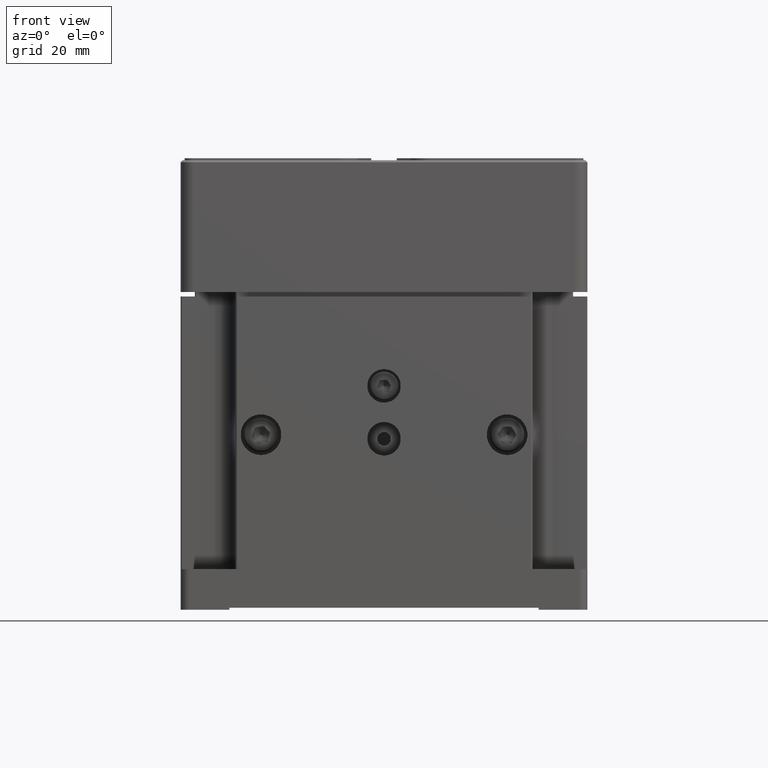
[diagram: clean part render]
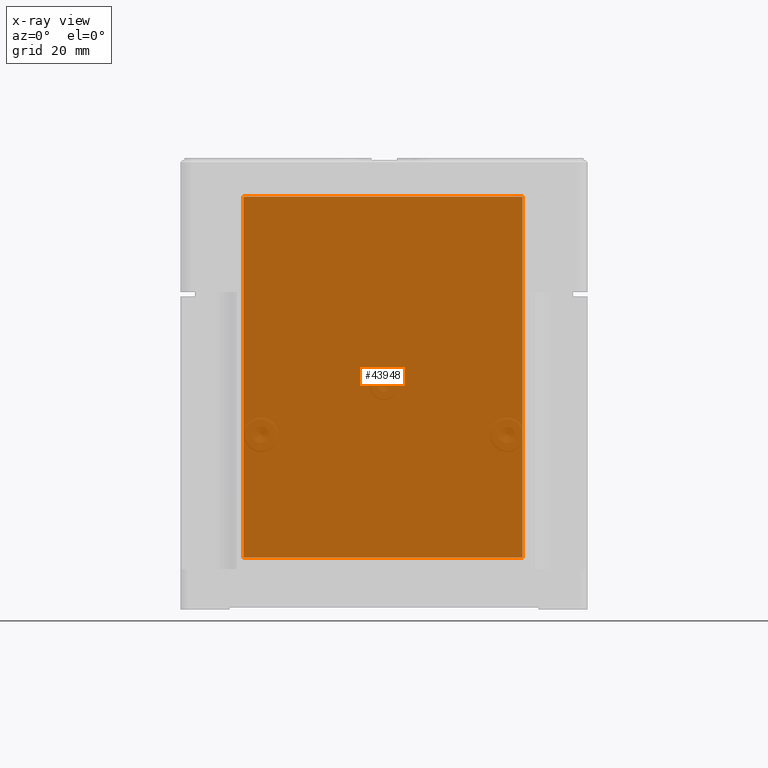
[diagram: x-ray — body ghosted, one internal face saturated and labeled with its STEP entity id]
A machine part, front view, then the same camera in x-ray: the body is ghosted and one INTERNAL B-rep face — a face not visible from any outside direction — is saturated and labeled: STEP entity #43948.
In plain terms, the highlighted planar face has unit normal (-0, 1, 0).
Its self-contained STEP definition (entity closure, byte-faithful):
#191 = CARTESIAN_POINT ( 'NONE',  ( -34.53213445791901393, 8.999999999999923617, 201.5786750473931477 ) ) ;
#675 = DIRECTION ( 'NONE',  ( -8.345748681675372357E-16, 1.000000000000000000, 0.000000000000000000 ) ) ;
#1983 = DIRECTION ( 'NONE',  ( 1.000000000000000000, 8.345748681675372357E-16, -0.000000000000000000 ) ) ;
#4435 = LINE ( 'NONE', #191, #41479 ) ;
#5529 = LINE ( 'NONE', #15895, #11892 ) ;
#7537 = FACE_OUTER_BOUND ( 'NONE', #15488, .T. ) ;
#10199 = DIRECTION ( 'NONE',  ( -1.000000000000000000, -8.345748681675372357E-16, 0.000000000000000000 ) ) ;
#10723 = ORIENTED_EDGE ( 'NONE', *, *, #19430, .F. ) ;
#11892 = VECTOR ( 'NONE', #1983, 1000.000000000000000 ) ;
#13188 = ORIENTED_EDGE ( 'NONE', *, *, #37965, .F. ) ;
#13609 = LINE ( 'NONE', #27960, #20119 ) ;
#14345 = ORIENTED_EDGE ( 'NONE', *, *, #45479, .F. ) ;
#14781 = DIRECTION ( 'NONE',  ( 0.000000000000000000, 0.000000000000000000, 1.000000000000000000 ) ) ;
#15488 = EDGE_LOOP ( 'NONE', ( #18609, #10723, #14345, #13188 ) ) ;
#15585 = CARTESIAN_POINT ( 'NONE',  ( 34.07147222789321006, 8.999999999999973355, 2.832529588695869904 ) ) ;
#15895 = CARTESIAN_POINT ( 'NONE',  ( 35.45000000000002416, 8.999999999999982236, 91.53712329073599108 ) ) ;
#16878 = DIRECTION ( 'NONE',  ( -1.000000000000000000, -8.345748681675372357E-16, 0.000000000000000000 ) ) ;
#17508 = CARTESIAN_POINT ( 'NONE',  ( 34.07147222789318164, 8.999999999999980460, 91.53712329073599108 ) ) ;
#18609 = ORIENTED_EDGE ( 'NONE', *, *, #28061, .F. ) ;
#19222 = AXIS2_PLACEMENT_3D ( 'NONE', #36012, #675, #16878 ) ;
#19430 = EDGE_CURVE ( 'NONE', #40526, #35684, #28548, .T. ) ;
#20119 = VECTOR ( 'NONE', #42345, 1000.000000000000000 ) ;
#22909 = CARTESIAN_POINT ( 'NONE',  ( -34.53213445791902814, 8.999999999999937828, 91.53712329073599108 ) ) ;
#24701 = CARTESIAN_POINT ( 'NONE',  ( -34.53213445791902103, 8.999999999999937828, 2.832529588695869904 ) ) ;
#25649 = PLANE ( 'NONE',  #19222 ) ;
#27960 = CARTESIAN_POINT ( 'NONE',  ( 34.07147222789319585, 8.999999999999980460, 201.5786750473931477 ) ) ;
#28061 = EDGE_CURVE ( 'NONE', #35684, #43210, #4435, .T. ) ;
#28548 = LINE ( 'NONE', #42465, #31210 ) ;
#31210 = VECTOR ( 'NONE', #10199, 1000.000000000000000 ) ;
#35684 = VERTEX_POINT ( 'NONE', #24701 ) ;
#36012 = CARTESIAN_POINT ( 'NONE',  ( 35.45000000000002416, 8.999999999999982236, 201.5786750473931477 ) ) ;
#37965 = EDGE_CURVE ( 'NONE', #43210, #41882, #5529, .T. ) ;
#40526 = VERTEX_POINT ( 'NONE', #15585 ) ;
#41479 = VECTOR ( 'NONE', #14781, 1000.000000000000000 ) ;
#41882 = VERTEX_POINT ( 'NONE', #17508 ) ;
#42345 = DIRECTION ( 'NONE',  ( -0.000000000000000000, -0.000000000000000000, -1.000000000000000000 ) ) ;
#42465 = CARTESIAN_POINT ( 'NONE',  ( 35.45000000000002416, 8.999999999999982236, 2.832529588695869904 ) ) ;
#43210 = VERTEX_POINT ( 'NONE', #22909 ) ;
#43948 = ADVANCED_FACE ( 'NONE', ( #7537 ), #25649, .F. ) ;
#45479 = EDGE_CURVE ( 'NONE', #41882, #40526, #13609, .T. ) ;